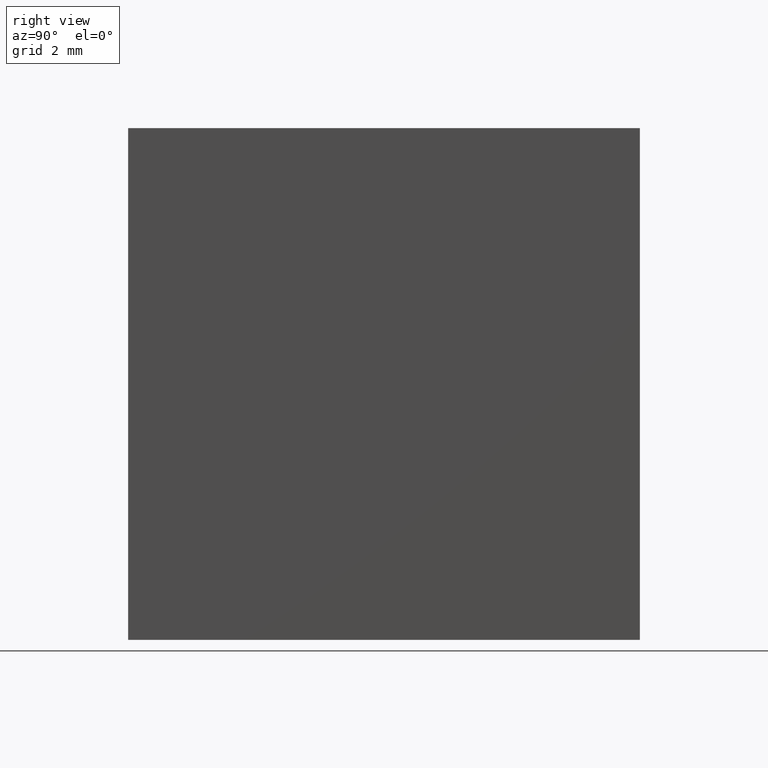
[diagram: clean part render]
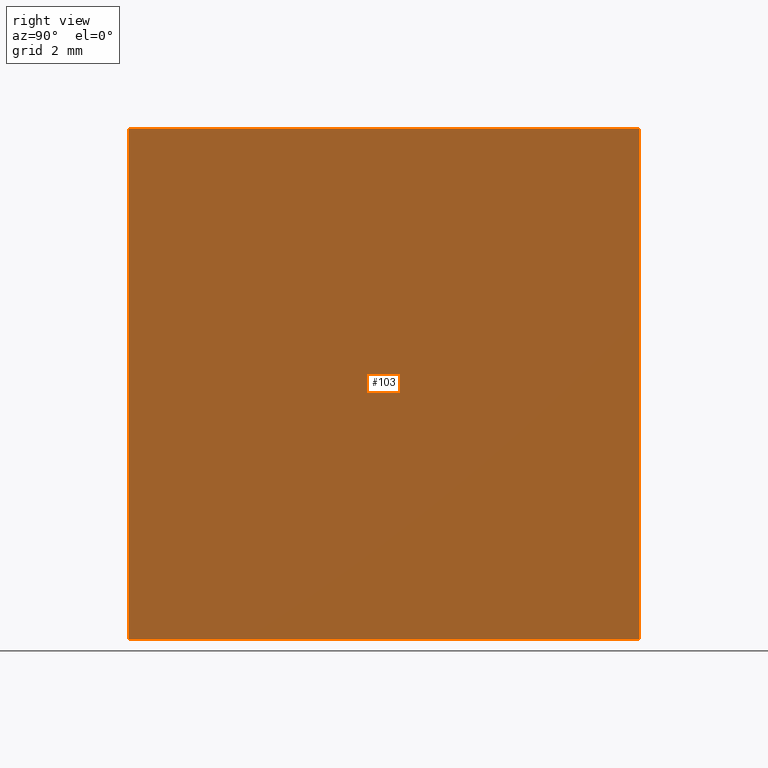
[diagram: same view with one face highlighted and labeled with its STEP entity id]
A machine part, right view. The second image highlights one B-rep face of the part: STEP entity #103.
In plain terms, the highlighted planar face has unit normal (-1, 0, 0).
Its self-contained STEP definition (entity closure, byte-faithful):
#3 = ORIENTED_EDGE ( 'NONE', *, *, #200, .T. ) ;
#9 = VECTOR ( 'NONE', #46, 1000.000000000000000 ) ;
#12 = CARTESIAN_POINT ( 'NONE',  ( -131.1047956651487700, 10.00000000000000000, 5.000000000000000000 ) ) ;
#13 = CARTESIAN_POINT ( 'NONE',  ( -131.1047956651487700, 10.00000000000000000, -4.999999999999987600 ) ) ;
#26 = DIRECTION ( 'NONE',  ( -0.0000000000000000000, -0.0000000000000000000, -1.000000000000000000 ) ) ;
#29 = CARTESIAN_POINT ( 'NONE',  ( -131.1047956651487700, 10.00000000000000000, -4.999999999999987600 ) ) ;
#35 = EDGE_CURVE ( 'NONE', #124, #143, #198, .T. ) ;
#41 = EDGE_CURVE ( 'NONE', #177, #131, #77, .T. ) ;
#46 = DIRECTION ( 'NONE',  ( -0.0000000000000000000, -0.0000000000000000000, -1.000000000000000000 ) ) ;
#52 = LINE ( 'NONE', #29, #184 ) ;
#55 = DIRECTION ( 'NONE',  ( 0.0000000000000000000, 0.0000000000000000000, 1.000000000000000000 ) ) ;
#59 = LINE ( 'NONE', #12, #168 ) ;
#63 = DIRECTION ( 'NONE',  ( -0.0000000000000000000, -1.000000000000000000, -0.0000000000000000000 ) ) ;
#64 = CARTESIAN_POINT ( 'NONE',  ( -131.1047956651487700, 0.0000000000000000000, -4.999999999999987600 ) ) ;
#73 = VECTOR ( 'NONE', #26, 1000.000000000000000 ) ;
#77 = LINE ( 'NONE', #64, #73 ) ;
#78 = EDGE_CURVE ( 'NONE', #143, #131, #52, .T. ) ;
#80 = PLANE ( 'NONE',  #185 ) ;
#84 = EDGE_LOOP ( 'NONE', ( #87, #102, #147, #3 ) ) ;
#86 = FACE_OUTER_BOUND ( 'NONE', #84, .T. ) ;
#87 = ORIENTED_EDGE ( 'NONE', *, *, #41, .T. ) ;
#102 = ORIENTED_EDGE ( 'NONE', *, *, #78, .F. ) ;
#103 = ADVANCED_FACE ( 'NONE', ( #86 ), #80, .F. ) ;
#107 = CARTESIAN_POINT ( 'NONE',  ( -131.1047956651487700, 10.00000000000000000, -4.999999999999987600 ) ) ;
#124 = VERTEX_POINT ( 'NONE', #169 ) ;
#131 = VERTEX_POINT ( 'NONE', #162 ) ;
#139 = CARTESIAN_POINT ( 'NONE',  ( -131.1047956651487700, 10.00000000000000000, -4.999999999999987600 ) ) ;
#142 = CARTESIAN_POINT ( 'NONE',  ( -131.1047956651487700, 0.0000000000000000000, 5.000000000000000000 ) ) ;
#143 = VERTEX_POINT ( 'NONE', #139 ) ;
#147 = ORIENTED_EDGE ( 'NONE', *, *, #35, .F. ) ;
#162 = CARTESIAN_POINT ( 'NONE',  ( -131.1047956651487700, 0.0000000000000000000, -4.999999999999987600 ) ) ;
#168 = VECTOR ( 'NONE', #63, 1000.000000000000000 ) ;
#169 = CARTESIAN_POINT ( 'NONE',  ( -131.1047956651487700, 10.00000000000000000, 5.000000000000000000 ) ) ;
#177 = VERTEX_POINT ( 'NONE', #142 ) ;
#184 = VECTOR ( 'NONE', #204, 1000.000000000000000 ) ;
#185 = AXIS2_PLACEMENT_3D ( 'NONE', #13, #193, #55 ) ;
#193 = DIRECTION ( 'NONE',  ( -1.000000000000000000, 0.0000000000000000000, 0.0000000000000000000 ) ) ;
#198 = LINE ( 'NONE', #107, #9 ) ;
#200 = EDGE_CURVE ( 'NONE', #124, #177, #59, .T. ) ;
#204 = DIRECTION ( 'NONE',  ( -0.0000000000000000000, -1.000000000000000000, -0.0000000000000000000 ) ) ;